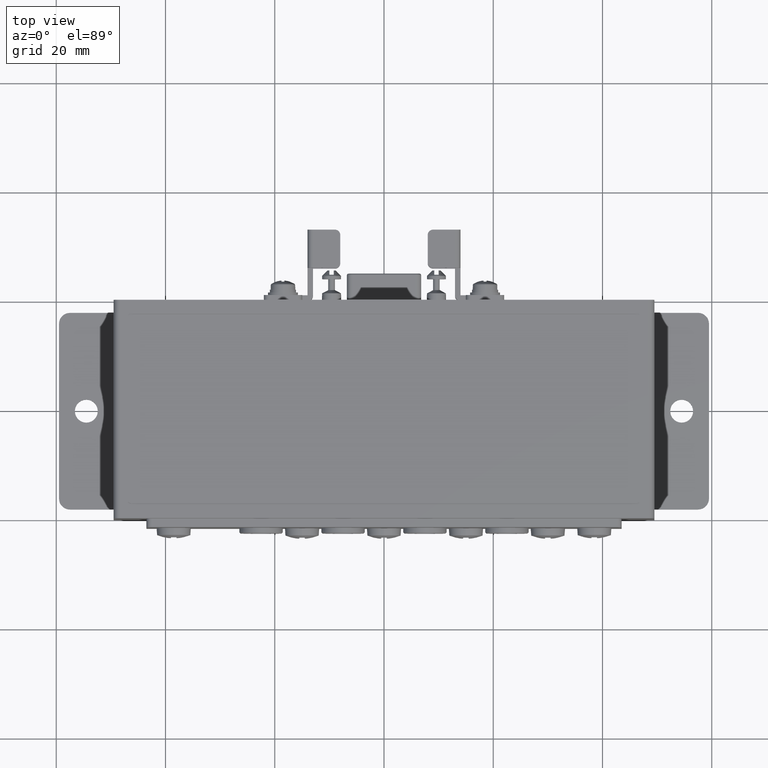
[diagram: clean part render]
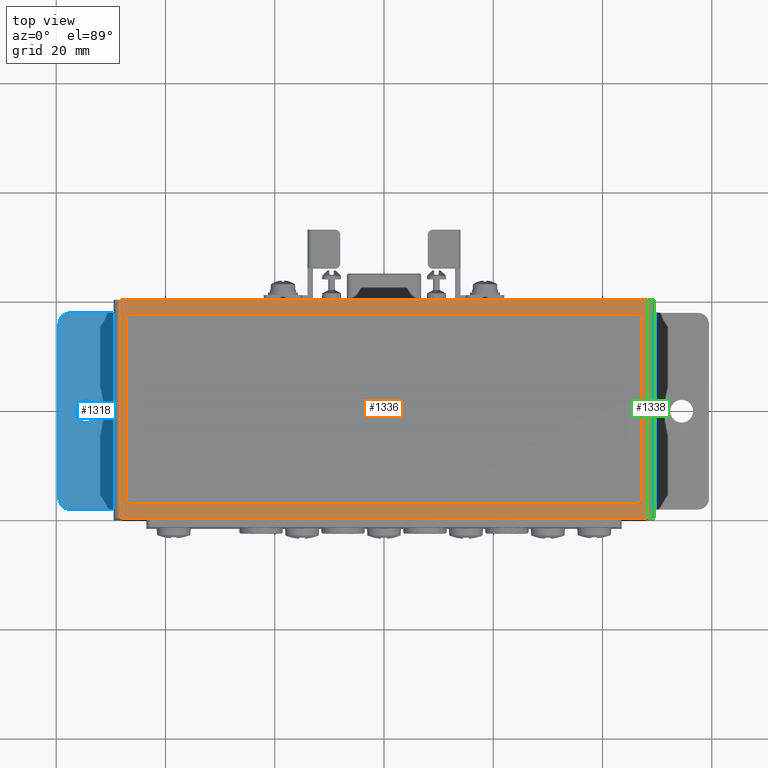
[diagram: same view with three faces highlighted in distinct colors, each labeled with its STEP entity id]
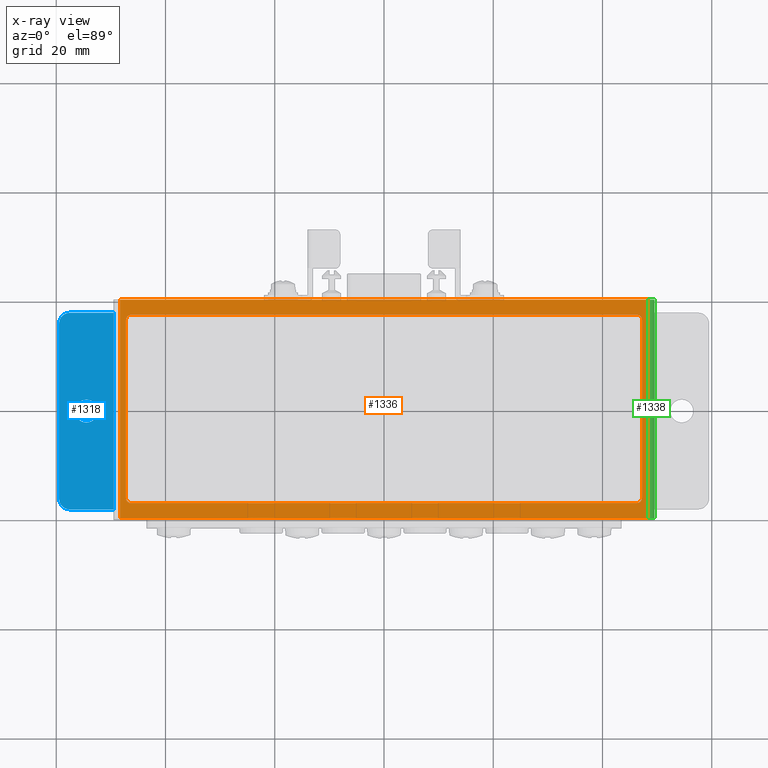
[diagram: x-ray of the same camera — body ghosted, the three highlighted faces saturated]
A machine part, top view with three faces highlighted in distinct colors.
The next image is the same camera in x-ray (body ghosted, the three faces saturated) — at least one of them is partly hidden behind the body in this view.
Their STEP definitions:

[orange] entity #1336 — the highlighted planar face has unit normal (0, 0, 1).
#1336 = ADVANCED_FACE( '', ( #2857, #2858 ), #2859, .T. );
#2857 = FACE_BOUND( '', #4492, .T. );
#2858 = FACE_OUTER_BOUND( '', #4493, .T. );
#2859 = PLANE( '', #4494 );
#4492 = EDGE_LOOP( '', ( #8372, #8373, #8374, #8375, #8376, #8377, #8378, #8379, #8380, #8381, #8382, #8383, #8384, #8385, #8386, #8387, #8388, #8389, #8390, #8391, #8392, #8393, #8394, #8395, #8396, #8397, #8398, #8399, #8400, #8401, #8402, #8403, #8404, #8405, #8406, #8407, #8408, #8409, #8410, #8411, #8412, #8413, #8414, #8415, #8416, #8417, #8418, #8419 ) );
#4493 = EDGE_LOOP( '', ( #8420, #8421, #8422, #8423 ) );
#4494 = AXIS2_PLACEMENT_3D( '', #8424, #8425, #8426 );
#8372 = ORIENTED_EDGE( '', *, *, #9865, .F. );
#8373 = ORIENTED_EDGE( '', *, *, #10210, .F. );
#8374 = ORIENTED_EDGE( '', *, *, #10159, .F. );
#8375 = ORIENTED_EDGE( '', *, *, #9817, .F. );
#8376 = ORIENTED_EDGE( '', *, *, #10795, .F. );
#8377 = ORIENTED_EDGE( '', *, *, #9514, .F. );
#8378 = ORIENTED_EDGE( '', *, *, #9827, .F. );
#8379 = ORIENTED_EDGE( '', *, *, #10796, .F. );
#8380 = ORIENTED_EDGE( '', *, *, #10726, .F. );
#8381 = ORIENTED_EDGE( '', *, *, #9695, .F. );
#8382 = ORIENTED_EDGE( '', *, *, #10335, .F. );
#8383 = ORIENTED_EDGE( '', *, *, #10189, .F. );
#8384 = ORIENTED_EDGE( '', *, *, #10650, .F. );
#8385 = ORIENTED_EDGE( '', *, *, #10797, .F. );
#8386 = ORIENTED_EDGE( '', *, *, #9540, .F. );
#8387 = ORIENTED_EDGE( '', *, *, #10204, .F. );
#8388 = ORIENTED_EDGE( '', *, *, #10400, .F. );
#8389 = ORIENTED_EDGE( '', *, *, #9691, .F. );
#8390 = ORIENTED_EDGE( '', *, *, #9435, .F. );
#8391 = ORIENTED_EDGE( '', *, *, #10798, .F. );
#8392 = ORIENTED_EDGE( '', *, *, #10610, .F. );
#8393 = ORIENTED_EDGE( '', *, *, #10485, .F. );
#8394 = ORIENTED_EDGE( '', *, *, #9849, .F. );
#8395 = ORIENTED_EDGE( '', *, *, #9626, .F. );
#8396 = ORIENTED_EDGE( '', *, *, #10381, .F. );
#8397 = ORIENTED_EDGE( '', *, *, #9276, .F. );
#8398 = ORIENTED_EDGE( '', *, *, #10038, .F. );
#8399 = ORIENTED_EDGE( '', *, *, #10226, .F. );
#8400 = ORIENTED_EDGE( '', *, *, #9524, .F. );
#8401 = ORIENTED_EDGE( '', *, *, #10799, .F. );
#8402 = ORIENTED_EDGE( '', *, *, #9911, .F. );
#8403 = ORIENTED_EDGE( '', *, *, #10000, .F. );
#8404 = ORIENTED_EDGE( '', *, *, #10800, .F. );
#8405 = ORIENTED_EDGE( '', *, *, #9926, .F. );
#8406 = ORIENTED_EDGE( '', *, *, #10256, .F. );
#8407 = ORIENTED_EDGE( '', *, *, #10362, .F. );
#8408 = ORIENTED_EDGE( '', *, *, #10393, .F. );
#8409 = ORIENTED_EDGE( '', *, *, #10332, .F. );
#8410 = ORIENTED_EDGE( '', *, *, #9720, .F. );
#8411 = ORIENTED_EDGE( '', *, *, #9931, .F. );
#8412 = ORIENTED_EDGE( '', *, *, #9641, .F. );
#8413 = ORIENTED_EDGE( '', *, *, #10526, .F. );
#8414 = ORIENTED_EDGE( '', *, *, #9293, .F. );
#8415 = ORIENTED_EDGE( '', *, *, #10417, .F. );
#8416 = ORIENTED_EDGE( '', *, *, #10801, .F. );
#8417 = ORIENTED_EDGE( '', *, *, #10741, .F. );
#8418 = ORIENTED_EDGE( '', *, *, #9474, .F. );
#8419 = ORIENTED_EDGE( '', *, *, #9616, .F. );
#8420 = ORIENTED_EDGE( '', *, *, #9344, .T. );
#8421 = ORIENTED_EDGE( '', *, *, #10802, .T. );
#8422 = ORIENTED_EDGE( '', *, *, #10433, .T. );
#8423 = ORIENTED_EDGE( '', *, *, #9918, .T. );
#8424 = CARTESIAN_POINT( '', ( -49.4999070000000, 19.9999855000000, 0.000000000000000 ) );
#8425 = DIRECTION( '', ( 0.000000000000000, 0.000000000000000, 1.00000000000000 ) );
#8426 = DIRECTION( '', ( -1.00000000000000, -0.000000000000000, 0.000000000000000 ) );
#9276 = EDGE_CURVE( '', #11032, #11033, #11034, .T. );
#9293 = EDGE_CURVE( '', #11062, #11063, #11064, .T. );
#9344 = EDGE_CURVE( '', #11155, #11153, #11156, .T. );
#9435 = EDGE_CURVE( '', #11312, #11313, #11314, .T. );
#9474 = EDGE_CURVE( '', #11379, #11380, #11381, .T. );
#9514 = EDGE_CURVE( '', #11448, #11449, #11450, .T. );
#9524 = EDGE_CURVE( '', #11466, #11467, #11468, .T. );
#9540 = EDGE_CURVE( '', #11495, #11496, #11497, .T. );
#9616 = EDGE_CURVE( '', #11629, #11379, #11630, .T. );
#9626 = EDGE_CURVE( '', #11646, #11647, #11648, .T. );
#9641 = EDGE_CURVE( '', #11673, #11674, #11675, .T. );
#9691 = EDGE_CURVE( '', #11313, #11756, #11757, .T. );
#9695 = EDGE_CURVE( '', #11762, #11763, #11764, .T. );
#9720 = EDGE_CURVE( '', #11804, #11805, #11806, .T. );
#9817 = EDGE_CURVE( '', #11965, #11966, #11967, .T. );
#9827 = EDGE_CURVE( '', #11981, #11448, #11982, .T. );
#9849 = EDGE_CURVE( '', #11647, #12012, #12013, .T. );
#9865 = EDGE_CURVE( '', #12038, #11629, #12039, .T. );
#9911 = EDGE_CURVE( '', #12115, #12116, #12117, .T. );
#9918 = EDGE_CURVE( '', #12125, #11155, #12128, .T. );
#9926 = EDGE_CURVE( '', #12139, #12140, #12141, .T. );
#9931 = EDGE_CURVE( '', #11674, #11804, #12148, .T. );
#10000 = EDGE_CURVE( '', #12258, #12115, #12259, .T. );
#10038 = EDGE_CURVE( '', #12313, #11032, #12314, .T. );
#10159 = EDGE_CURVE( '', #11966, #12499, #12500, .T. );
#10189 = EDGE_CURVE( '', #12543, #12544, #12545, .T. );
#10204 = EDGE_CURVE( '', #12566, #11495, #12567, .T. );
#10210 = EDGE_CURVE( '', #12499, #12038, #12575, .T. );
#10226 = EDGE_CURVE( '', #11467, #12313, #12599, .T. );
#10256 = EDGE_CURVE( '', #12642, #12139, #12643, .T. );
#10332 = EDGE_CURVE( '', #11805, #12748, #12749, .T. );
#10335 = EDGE_CURVE( '', #12544, #11762, #12752, .T. );
#10362 = EDGE_CURVE( '', #12791, #12642, #12792, .T. );
#10381 = EDGE_CURVE( '', #11033, #11646, #12817, .T. );
#10393 = EDGE_CURVE( '', #12748, #12791, #12831, .T. );
#10400 = EDGE_CURVE( '', #11756, #12566, #12842, .T. );
#10417 = EDGE_CURVE( '', #12863, #11062, #12864, .T. );
#10433 = EDGE_CURVE( '', #12882, #12125, #12883, .T. );
#10485 = EDGE_CURVE( '', #12012, #12952, #12953, .T. );
#10526 = EDGE_CURVE( '', #11063, #11673, #13002, .T. );
#10610 = EDGE_CURVE( '', #12952, #13107, #13108, .T. );
#10650 = EDGE_CURVE( '', #13158, #12543, #13159, .T. );
#10726 = EDGE_CURVE( '', #11763, #13249, #13250, .T. );
#10741 = EDGE_CURVE( '', #11380, #13266, #13267, .T. );
#10795 = EDGE_CURVE( '', #11449, #11965, #13330, .T. );
#10796 = EDGE_CURVE( '', #13249, #11981, #13331, .T. );
#10797 = EDGE_CURVE( '', #11496, #13158, #13332, .T. );
#10798 = EDGE_CURVE( '', #13107, #11312, #13333, .T. );
#10799 = EDGE_CURVE( '', #12116, #11466, #13334, .T. );
#10800 = EDGE_CURVE( '', #12140, #12258, #13335, .T. );
#10801 = EDGE_CURVE( '', #13266, #12863, #13336, .T. );
#10802 = EDGE_CURVE( '', #11153, #12882, #13337, .T. );
#11032 = VERTEX_POINT( '', #13646 );
#11033 = VERTEX_POINT( '', #13647 );
#11034 = LINE( '', #13648, #13649 );
#11062 = VERTEX_POINT( '', #13682 );
#11063 = VERTEX_POINT( '', #13683 );
#11064 = LINE( '', #13684, #13685 );
#11153 = VERTEX_POINT( '', #13810 );
#11155 = VERTEX_POINT( '', #13812 );
#11156 = LINE( '', #13813, #13814 );
#11312 = VERTEX_POINT( '', #14051 );
#11313 = VERTEX_POINT( '', #14052 );
#11314 = LINE( '', #14053, #14054 );
#11379 = VERTEX_POINT( '', #14145 );
#11380 = VERTEX_POINT( '', #14146 );
#11381 = LINE( '', #14147, #14148 );
#11448 = VERTEX_POINT( '', #14252 );
#11449 = VERTEX_POINT( '', #14253 );
#11450 = LINE( '', #14254, #14255 );
#11466 = VERTEX_POINT( '', #14277 );
#11467 = VERTEX_POINT( '', #14278 );
#11468 = LINE( '', #14279, #14280 );
#11495 = VERTEX_POINT( '', #14328 );
#11496 = VERTEX_POINT( '', #14329 );
#11497 = LINE( '', #14330, #14331 );
#11629 = VERTEX_POINT( '', #14563 );
#11630 = LINE( '', #14564, #14565 );
#11646 = VERTEX_POINT( '', #14585 );
#11647 = VERTEX_POINT( '', #14586 );
#11648 = LINE( '', #14587, #14588 );
#11673 = VERTEX_POINT( '', #14625 );
#11674 = VERTEX_POINT( '', #14626 );
#11675 = LINE( '', #14627, #14628 );
#11756 = VERTEX_POINT( '', #14761 );
#11757 = LINE( '', #14762, #14763 );
#11762 = VERTEX_POINT( '', #14770 );
#11763 = VERTEX_POINT( '', #14771 );
#11764 = LINE( '', #14772, #14773 );
#11804 = VERTEX_POINT( '', #14829 );
#11805 = VERTEX_POINT( '', #14830 );
#11806 = LINE( '', #14831, #14832 );
#11965 = VERTEX_POINT( '', #15060 );
#11966 = VERTEX_POINT( '', #15061 );
#11967 = LINE( '', #15062, #15063 );
#11981 = VERTEX_POINT( '', #15088 );
#11982 = LINE( '', #15089, #15090 );
#12012 = VERTEX_POINT( '', #15134 );
#12013 = LINE( '', #15135, #15136 );
#12038 = VERTEX_POINT( '', #15171 );
#12039 = LINE( '', #15172, #15173 );
#12115 = VERTEX_POINT( '', #15322 );
#12116 = VERTEX_POINT( '', #15323 );
#12117 = LINE( '', #15324, #15325 );
#12125 = VERTEX_POINT( '', #15336 );
#12128 = LINE( '', #15340, #15341 );
#12139 = VERTEX_POINT( '', #15355 );
#12140 = VERTEX_POINT( '', #15356 );
#12141 = LINE( '', #15357, #15358 );
#12148 = LINE( '', #15368, #15369 );
#12258 = VERTEX_POINT( '', #15571 );
#12259 = LINE( '', #15572, #15573 );
#12313 = VERTEX_POINT( '', #15670 );
#12314 = LINE( '', #15671, #15672 );
#12499 = VERTEX_POINT( '', #15954 );
#12500 = LINE( '', #15955, #15956 );
#12543 = VERTEX_POINT( '', #16032 );
#12544 = VERTEX_POINT( '', #16033 );
#12545 = LINE( '', #16034, #16035 );
#12566 = VERTEX_POINT( '', #16069 );
#12567 = LINE( '', #16070, #16071 );
#12575 = LINE( '', #16081, #16082 );
#12599 = LINE( '', #16113, #16114 );
#12642 = VERTEX_POINT( '', #16187 );
#12643 = LINE( '', #16188, #16189 );
#12748 = VERTEX_POINT( '', #16356 );
#12749 = LINE( '', #16357, #16358 );
#12752 = LINE( '', #16362, #16363 );
#12791 = VERTEX_POINT( '', #16429 );
#12792 = LINE( '', #16430, #16431 );
#12817 = LINE( '', #16472, #16473 );
#12831 = LINE( '', #16499, #16500 );
#12842 = LINE( '', #16514, #16515 );
#12863 = VERTEX_POINT( '', #16548 );
#12864 = LINE( '', #16549, #16550 );
#12882 = VERTEX_POINT( '', #16578 );
#12883 = LINE( '', #16579, #16580 );
#12952 = VERTEX_POINT( '', #16697 );
#12953 = LINE( '', #16698, #16699 );
#13002 = LINE( '', #16786, #16787 );
#13107 = VERTEX_POINT( '', #16985 );
#13108 = LINE( '', #16986, #16987 );
#13158 = VERTEX_POINT( '', #17063 );
#13159 = LINE( '', #17064, #17065 );
#13249 = VERTEX_POINT( '', #17209 );
#13250 = LINE( '', #17210, #17211 );
#13266 = VERTEX_POINT( '', #17238 );
#13267 = LINE( '', #17239, #17240 );
#13330 = LINE( '', #17320, #17321 );
#13331 = LINE( '', #17322, #17323 );
#13332 = LINE( '', #17324, #17325 );
#13333 = LINE( '', #17326, #17327 );
#13334 = LINE( '', #17328, #17329 );
#13335 = LINE( '', #17330, #17331 );
#13336 = LINE( '', #17332, #17333 );
#13337 = LINE( '', #17334, #17335 );
#13646 = CARTESIAN_POINT( '', ( 47.2041117932970, -16.5511194962540, 0.000000000000000 ) );
#13647 = CARTESIAN_POINT( '', ( 47.2396267280030, -16.3963188193600, 0.000000000000000 ) );
#13648 = CARTESIAN_POINT( '', ( 47.2041117932970, -16.5511194962540, 0.000000000000000 ) );
#13649 = VECTOR( '', #17577, 1000.00000000000 );
#13682 = CARTESIAN_POINT( '', ( -47.1310636033350, -16.7232629236950, 0.000000000000000 ) );
#13683 = CARTESIAN_POINT( '', ( -47.0477825247900, -16.8529498880240, 0.000000000000000 ) );
#13684 = CARTESIAN_POINT( '', ( -47.1310636033350, -16.7232629236950, 0.000000000000000 ) );
#13685 = VECTOR( '', #17604, 1000.00000000000 );
#13810 = CARTESIAN_POINT( '', ( 48.2999070000000, -19.9999855000000, 0.000000000000000 ) );
#13812 = CARTESIAN_POINT( '', ( -48.2999070000000, -19.9999855000000, 0.000000000000000 ) );
#13813 = CARTESIAN_POINT( '', ( -49.4999070000000, -19.9999855000000, 0.000000000000000 ) );
#13814 = VECTOR( '', #17676, 1000.00000000000 );
#14051 = CARTESIAN_POINT( '', ( 47.1313731510120, 16.7232629610220, 0.000000000000000 ) );
#14052 = CARTESIAN_POINT( '', ( 47.0480750864230, 16.8529499253500, 0.000000000000000 ) );
#14053 = CARTESIAN_POINT( '', ( 47.1313731510120, 16.7232629610220, 0.000000000000000 ) );
#14054 = VECTOR( '', #17792, 1000.00000000000 );
#14145 = CARTESIAN_POINT( '', ( -47.2499155768230, -16.2499986249999, 0.000000000000000 ) );
#14146 = CARTESIAN_POINT( '', ( -47.2493810923070, -16.2830055419050, 0.000000000000000 ) );
#14147 = CARTESIAN_POINT( '', ( -47.2499155768230, -16.2499986249999, 0.000000000000000 ) );
#14148 = VECTOR( '', #17839, 1000.00000000000 );
#14252 = CARTESIAN_POINT( '', ( -46.8528293733490, 17.0479255777420, 0.000000000000000 ) );
#14253 = CARTESIAN_POINT( '', ( -46.9677931691800, 16.9462052784530, 0.000000000000000 ) );
#14254 = CARTESIAN_POINT( '', ( -46.8528293733490, 17.0479255777420, 0.000000000000000 ) );
#14255 = VECTOR( '', #17876, 1000.00000000000 );
#14277 = CARTESIAN_POINT( '', ( 46.9680737046740, -16.9462052411270, 0.000000000000000 ) );
#14278 = CARTESIAN_POINT( '', ( 47.0662744255130, -16.8281235632570, 0.000000000000000 ) );
#14279 = CARTESIAN_POINT( '', ( 46.9680737046740, -16.9462052411270, 0.000000000000000 ) );
#14280 = VECTOR( '', #17886, 1000.00000000000 );
#14328 = CARTESIAN_POINT( '', ( 46.6958909089330, 17.1454912317460, 0.000000000000000 ) );
#14329 = CARTESIAN_POINT( '', ( 46.5512690422610, 17.2039622846160, 0.000000000000000 ) );
#14330 = CARTESIAN_POINT( '', ( 46.6958909089330, 17.1454912317460, 0.000000000000000 ) );
#14331 = VECTOR( '', #17901, 1000.00000000000 );
#14563 = CARTESIAN_POINT( '', ( -47.2499155768230, 16.2499986623260, 0.000000000000000 ) );
#14564 = CARTESIAN_POINT( '', ( -47.2499155768230, 16.2499986623260, 0.000000000000000 ) );
#14565 = VECTOR( '', #17983, 1000.00000000000 );
#14585 = CARTESIAN_POINT( '', ( 47.2502593906250, -16.2499986250000, 0.000000000000000 ) );
#14586 = CARTESIAN_POINT( '', ( 47.2502593906250, 16.2499986623260, 0.000000000000000 ) );
#14587 = CARTESIAN_POINT( '', ( 47.2502593906250, -16.2499986250000, 0.000000000000000 ) );
#14588 = VECTOR( '', #17997, 1000.00000000000 );
#14625 = CARTESIAN_POINT( '', ( -46.9460768344280, -16.9679241586670, 0.000000000000000 ) );
#14626 = CARTESIAN_POINT( '', ( -46.8280042877830, -17.0661248795060, 0.000000000000000 ) );
#14627 = CARTESIAN_POINT( '', ( -46.9460768344280, -16.9679241586670, 0.000000000000000 ) );
#14628 = VECTOR( '', #18010, 1000.00000000000 );
#14761 = CARTESIAN_POINT( '', ( 46.9463547871340, 16.9679241959930, 0.000000000000000 ) );
#14762 = CARTESIAN_POINT( '', ( 47.0480750864230, 16.8529499253500, 0.000000000000000 ) );
#14763 = VECTOR( '', #18062, 1000.00000000000 );
#14770 = CARTESIAN_POINT( '', ( -46.2828212001190, 17.2495751948570, 0.000000000000000 ) );
#14771 = CARTESIAN_POINT( '', ( -46.4278450968600, 17.2343096429280, 0.000000000000000 ) );
#14772 = CARTESIAN_POINT( '', ( -46.2828212001190, 17.2495751948570, 0.000000000000000 ) );
#14773 = VECTOR( '', #18065, 1000.00000000000 );
#14829 = CARTESIAN_POINT( '', ( -46.6956226403900, -17.1454911944200, 0.000000000000000 ) );
#14830 = CARTESIAN_POINT( '', ( -46.5509896477820, -17.2039622472900, 0.000000000000000 ) );
#14831 = CARTESIAN_POINT( '', ( -46.6956226403900, -17.1454911944200, 0.000000000000000 ) );
#14832 = VECTOR( '', #18097, 1000.00000000000 );
#15060 = CARTESIAN_POINT( '', ( -47.0659785576210, 16.8281236005830, 0.000000000000000 ) );
#15061 = CARTESIAN_POINT( '', ( -47.1453277831390, 16.6957414002520, 0.000000000000000 ) );
#15062 = CARTESIAN_POINT( '', ( -47.0659785576210, 16.8281236005830, 0.000000000000000 ) );
#15063 = VECTOR( '', #18230, 1000.00000000000 );
#15088 = CARTESIAN_POINT( '', ( -46.7231449256630, 17.1312236423310, 0.000000000000000 ) );
#15089 = CARTESIAN_POINT( '', ( -46.7231449256630, 17.1312236423310, 0.000000000000000 ) );
#15090 = VECTOR( '', #18238, 1000.00000000000 );
#15134 = CARTESIAN_POINT( '', ( 47.2497247035370, 16.2830055792320, 0.000000000000000 ) );
#15135 = CARTESIAN_POINT( '', ( 47.2502593906250, 16.2499986623260, 0.000000000000000 ) );
#15136 = VECTOR( '', #18259, 1000.00000000000 );
#15171 = CARTESIAN_POINT( '', ( -47.2392867232710, 16.3963188566870, 0.000000000000000 ) );
#15172 = CARTESIAN_POINT( '', ( -47.2392867232710, 16.3963188566870, 0.000000000000000 ) );
#15173 = VECTOR( '', #18276, 1000.00000000000 );
#15322 = CARTESIAN_POINT( '', ( 46.7234124697020, -17.1312236050050, 0.000000000000000 ) );
#15323 = CARTESIAN_POINT( '', ( 46.8530994340300, -17.0479255404160, 0.000000000000000 ) );
#15324 = CARTESIAN_POINT( '', ( 46.7234124697020, -17.1312236050050, 0.000000000000000 ) );
#15325 = VECTOR( '', #18311, 1000.00000000000 );
#15336 = CARTESIAN_POINT( '', ( -48.2999070000000, 19.9999855000000, 0.000000000000000 ) );
#15340 = CARTESIAN_POINT( '', ( -48.2999070000000, 19.9999855000000, 0.000000000000000 ) );
#15341 = VECTOR( '', #18319, 1000.00000000000 );
#15355 = CARTESIAN_POINT( '', ( 46.2831550879120, -17.2495751575300, 0.000000000000000 ) );
#15356 = CARTESIAN_POINT( '', ( 46.4281438844700, -17.2343096056020, 0.000000000000000 ) );
#15357 = CARTESIAN_POINT( '', ( 46.2831550879120, -17.2495751575300, 0.000000000000000 ) );
#15358 = VECTOR( '', #18326, 1000.00000000000 );
#15368 = CARTESIAN_POINT( '', ( -46.8280042877830, -17.0661248795060, 0.000000000000000 ) );
#15369 = VECTOR( '', #18330, 1000.00000000000 );
#15571 = CARTESIAN_POINT( '', ( 46.5810736678090, -17.1940385787730, 0.000000000000000 ) );
#15572 = CARTESIAN_POINT( '', ( 46.5810736678090, -17.1940385787730, 0.000000000000000 ) );
#15573 = VECTOR( '', #18398, 1000.00000000000 );
#15670 = CARTESIAN_POINT( '', ( 47.1456407404270, -16.6957413629260, 0.000000000000000 ) );
#15671 = CARTESIAN_POINT( '', ( 47.1456407404270, -16.6957413629260, 0.000000000000000 ) );
#15672 = VECTOR( '', #18429, 1000.00000000000 );
#15954 = CARTESIAN_POINT( '', ( -47.2037830902000, 16.5511195335800, 0.000000000000000 ) );
#15955 = CARTESIAN_POINT( '', ( -47.1453277831390, 16.6957414002520, 0.000000000000000 ) );
#15956 = VECTOR( '', #18565, 1000.00000000000 );
#16032 = CARTESIAN_POINT( '', ( 46.2501481710070, 17.2501098819440, 0.000000000000000 ) );
#16033 = CARTESIAN_POINT( '', ( -46.2498043572050, 17.2501098819440, 0.000000000000000 ) );
#16034 = CARTESIAN_POINT( '', ( 46.2501481710070, 17.2501098819440, 0.000000000000000 ) );
#16035 = VECTOR( '', #18586, 1000.00000000000 );
#16069 = CARTESIAN_POINT( '', ( 46.8282731092640, 17.0661249168320, 0.000000000000000 ) );
#16070 = CARTESIAN_POINT( '', ( 46.8282731092640, 17.0661249168320, 0.000000000000000 ) );
#16071 = VECTOR( '', #18597, 1000.00000000000 );
#16081 = CARTESIAN_POINT( '', ( -47.2037830902000, 16.5511195335800, 0.000000000000000 ) );
#16082 = VECTOR( '', #18603, 1000.00000000000 );
#16113 = CARTESIAN_POINT( '', ( 47.0662744255130, -16.8281235632570, 0.000000000000000 ) );
#16114 = VECTOR( '', #18623, 1000.00000000000 );
#16187 = CARTESIAN_POINT( '', ( 46.2501481710070, -17.2501098446180, 0.000000000000000 ) );
#16188 = CARTESIAN_POINT( '', ( 46.2501481710070, -17.2501098446180, 0.000000000000000 ) );
#16189 = VECTOR( '', #18647, 1000.00000000000 );
#16356 = CARTESIAN_POINT( '', ( -46.3961630654930, -17.2394771819960, 0.000000000000000 ) );
#16357 = CARTESIAN_POINT( '', ( -46.5509896477820, -17.2039622472900, 0.000000000000000 ) );
#16358 = VECTOR( '', #18718, 1000.00000000000 );
#16362 = CARTESIAN_POINT( '', ( -46.2498043572050, 17.2501098819440, 0.000000000000000 ) );
#16363 = VECTOR( '', #18720, 1000.00000000000 );
#16429 = CARTESIAN_POINT( '', ( -46.2498043572050, -17.2501098446180, 0.000000000000000 ) );
#16430 = CARTESIAN_POINT( '', ( -46.2498043572050, -17.2501098446180, 0.000000000000000 ) );
#16431 = VECTOR( '', #18746, 1000.00000000000 );
#16472 = CARTESIAN_POINT( '', ( 47.2396267280030, -16.3963188193600, 0.000000000000000 ) );
#16473 = VECTOR( '', #18761, 1000.00000000000 );
#16499 = CARTESIAN_POINT( '', ( -46.3961630654930, -17.2394771819960, 0.000000000000000 ) );
#16500 = VECTOR( '', #18773, 1000.00000000000 );
#16514 = CARTESIAN_POINT( '', ( 46.9463547871340, 16.9679241959930, 0.000000000000000 ) );
#16515 = VECTOR( '', #18780, 1000.00000000000 );
#16548 = CARTESIAN_POINT( '', ( -47.1938623145300, -16.5809241218020, 0.000000000000000 ) );
#16549 = CARTESIAN_POINT( '', ( -47.1938623145300, -16.5809241218020, 0.000000000000000 ) );
#16550 = VECTOR( '', #18790, 1000.00000000000 );
#16578 = CARTESIAN_POINT( '', ( 48.2999070000000, 19.9999855000000, 0.000000000000000 ) );
#16579 = CARTESIAN_POINT( '', ( 49.4999070000000, 19.9999855000000, 0.000000000000000 ) );
#16580 = VECTOR( '', #18810, 1000.00000000000 );
#16697 = CARTESIAN_POINT( '', ( 47.2344591516090, 16.4279943757890, 0.000000000000000 ) );
#16698 = CARTESIAN_POINT( '', ( 47.2497247035370, 16.2830055792320, 0.000000000000000 ) );
#16699 = VECTOR( '', #18866, 1000.00000000000 );
#16786 = CARTESIAN_POINT( '', ( -47.0477825247900, -16.8529498880240, 0.000000000000000 ) );
#16787 = VECTOR( '', #18902, 1000.00000000000 );
#16985 = CARTESIAN_POINT( '', ( 47.1941881247800, 16.5809241591280, 0.000000000000000 ) );
#16986 = CARTESIAN_POINT( '', ( 47.2344591516090, 16.4279943757890, 0.000000000000000 ) );
#16987 = VECTOR( '', #18974, 1000.00000000000 );
#17063 = CARTESIAN_POINT( '', ( 46.3964683653670, 17.2394772193220, 0.000000000000000 ) );
#17064 = CARTESIAN_POINT( '', ( 46.3964683653670, 17.2394772193220, 0.000000000000000 ) );
#17065 = VECTOR( '', #19020, 1000.00000000000 );
#17209 = CARTESIAN_POINT( '', ( -46.5807975816560, 17.1940386161000, 0.000000000000000 ) );
#17210 = CARTESIAN_POINT( '', ( -46.4278450968600, 17.2343096429280, 0.000000000000000 ) );
#17211 = VECTOR( '', #19106, 1000.00000000000 );
#17238 = CARTESIAN_POINT( '', ( -47.2341209028420, -16.4279943384630, 0.000000000000000 ) );
#17239 = CARTESIAN_POINT( '', ( -47.2493810923070, -16.2830055419050, 0.000000000000000 ) );
#17240 = VECTOR( '', #19116, 1000.00000000000 );
#17320 = CARTESIAN_POINT( '', ( -46.9677931691800, 16.9462052784530, 0.000000000000000 ) );
#17321 = VECTOR( '', #19167, 1000.00000000000 );
#17322 = CARTESIAN_POINT( '', ( -46.5807975816560, 17.1940386161000, 0.000000000000000 ) );
#17323 = VECTOR( '', #19168, 1000.00000000000 );
#17324 = CARTESIAN_POINT( '', ( 46.5512690422610, 17.2039622846160, 0.000000000000000 ) );
#17325 = VECTOR( '', #19169, 1000.00000000000 );
#17326 = CARTESIAN_POINT( '', ( 47.1941881247800, 16.5809241591280, 0.000000000000000 ) );
#17327 = VECTOR( '', #19170, 1000.00000000000 );
#17328 = CARTESIAN_POINT( '', ( 46.8530994340300, -17.0479255404160, 0.000000000000000 ) );
#17329 = VECTOR( '', #19171, 1000.00000000000 );
#17330 = CARTESIAN_POINT( '', ( 46.4281438844700, -17.2343096056020, 0.000000000000000 ) );
#17331 = VECTOR( '', #19172, 1000.00000000000 );
#17332 = CARTESIAN_POINT( '', ( -47.2341209028420, -16.4279943384630, 0.000000000000000 ) );
#17333 = VECTOR( '', #19173, 1000.00000000000 );
#17334 = CARTESIAN_POINT( '', ( 48.2999070000000, 19.9999855000000, 0.000000000000000 ) );
#17335 = VECTOR( '', #19174, 1000.00000000000 );
#17577 = DIRECTION( '', ( 0.223614118007969, 0.974677755069601, 0.000000000000000 ) );
#17604 = DIRECTION( '', ( 0.540348413699827, -0.841441377525541, 0.000000000000000 ) );
#17676 = DIRECTION( '', ( 1.00000000000000, 0.000000000000000, 0.000000000000000 ) );
#17792 = DIRECTION( '', ( -0.540426437793910, 0.841391267683107, 0.000000000000000 ) );
#17839 = DIRECTION( '', ( 0.0161909837242024, -0.999868917431701, 0.000000000000000 ) );
#17876 = DIRECTION( '', ( -0.748926867264403, -0.662652659761906, 0.000000000000000 ) );
#17886 = DIRECTION( '', ( 0.639412928946992, 0.768863516038724, 0.000000000000000 ) );
#17901 = DIRECTION( '', ( -0.927094708861763, 0.374827161236380, 0.000000000000000 ) );
#17983 = DIRECTION( '', ( 0.000000000000000, -1.00000000000000, 0.000000000000000 ) );
#17997 = DIRECTION( '', ( 0.000000000000000, 1.00000000000000, 0.000000000000000 ) );
#18010 = DIRECTION( '', ( 0.768839205846824, -0.639442159661705, 0.000000000000000 ) );
#18062 = DIRECTION( '', ( -0.662618795906301, 0.748956828736933, 0.000000000000000 ) );
#18065 = DIRECTION( '', ( -0.994505539601381, -0.104683961055005, 0.000000000000000 ) );
#18097 = DIRECTION( '', ( 0.927104728354481, -0.374802378144488, 0.000000000000000 ) );
#18230 = DIRECTION( '', ( -0.514114127995439, -0.857721786709122, 0.000000000000000 ) );
#18238 = DIRECTION( '', ( -0.841386498925649, -0.540433862212240, 0.000000000000000 ) );
#18259 = DIRECTION( '', ( -0.0161971185690184, 0.999868818070681, 0.000000000000000 ) );
#18276 = DIRECTION( '', ( -0.0724501586005300, -0.997372034157143, 0.000000000000000 ) );
#18311 = DIRECTION( '', ( 0.841391267683092, 0.540426437793933, 0.000000000000000 ) );
#18319 = DIRECTION( '', ( 0.000000000000000, -1.00000000000000, 0.000000000000000 ) );
#18326 = DIRECTION( '', ( 0.994502900882307, 0.104709026051609, 0.000000000000000 ) );
#18330 = DIRECTION( '', ( 0.857672012633021, -0.514197159410691, 0.000000000000000 ) );
#18398 = DIRECTION( '', ( 0.914874017949304, 0.403739434885045, 0.000000000000000 ) );
#18429 = DIRECTION( '', ( 0.374827161236304, 0.927094708861794, 0.000000000000000 ) );
#18565 = DIRECTION( '', ( -0.374740399552946, -0.927129782146436, 0.000000000000000 ) );
#18586 = DIRECTION( '', ( -1.00000000000000, 0.000000000000000, 0.000000000000000 ) );
#18597 = DIRECTION( '', ( -0.857672959801613, 0.514195579546480, 0.000000000000000 ) );
#18603 = DIRECTION( '', ( -0.223546515634995, -0.974693262184290, 0.000000000000000 ) );
#18623 = DIRECTION( '', ( 0.514195579546334, 0.857672959801700, 0.000000000000000 ) );
#18647 = DIRECTION( '', ( 0.999868818070694, 0.0161971185682409, 0.000000000000000 ) );
#18718 = DIRECTION( '', ( 0.974685909118303, -0.223578573584829, 0.000000000000000 ) );
#18720 = DIRECTION( '', ( -0.999868896919488, -0.0161922503996882, 0.000000000000000 ) );
#18746 = DIRECTION( '', ( 1.00000000000000, 0.000000000000000, 0.000000000000000 ) );
#18761 = DIRECTION( '', ( 0.0724759862585962, 0.997370157672588, 0.000000000000000 ) );
#18773 = DIRECTION( '', ( 0.997371536111882, -0.0724570145246410, 0.000000000000000 ) );
#18780 = DIRECTION( '', ( -0.768863516038806, 0.639412928946894, 0.000000000000000 ) );
#18790 = DIRECTION( '', ( 0.403651941075722, -0.914912624497991, 0.000000000000000 ) );
#18810 = DIRECTION( '', ( -1.00000000000000, 0.000000000000000, 0.000000000000000 ) );
#18866 = DIRECTION( '', ( -0.104709026052209, 0.994502900882244, 0.000000000000000 ) );
#18902 = DIRECTION( '', ( 0.662565409696421, -0.749004057314654, 0.000000000000000 ) );
#18974 = DIRECTION( '', ( -0.254649107858302, 0.967033521583906, 0.000000000000000 ) );
#19020 = DIRECTION( '', ( -0.997370157672581, 0.0724759862587039, 0.000000000000000 ) );
#19106 = DIRECTION( '', ( -0.967042828314730, -0.254613762795823, 0.000000000000000 ) );
#19116 = DIRECTION( '', ( 0.104672647070064, -0.994506730472623, 0.000000000000000 ) );
#19167 = DIRECTION( '', ( -0.639353906540369, -0.768912597238184, 0.000000000000000 ) );
#19168 = DIRECTION( '', ( -0.914882966915219, -0.403719155909659, 0.000000000000000 ) );
#19169 = DIRECTION( '', ( -0.974677755069648, 0.223614118007765, 0.000000000000000 ) );
#19170 = DIRECTION( '', ( -0.403739434882823, 0.914874017950285, 0.000000000000000 ) );
#19171 = DIRECTION( '', ( 0.748956828739791, 0.662618795903071, 0.000000000000000 ) );
#19172 = DIRECTION( '', ( 0.967033521583906, 0.254649107858302, 0.000000000000000 ) );
#19173 = DIRECTION( '', ( 0.254575552525716, -0.967052887931279, 0.000000000000000 ) );
#19174 = DIRECTION( '', ( 0.000000000000000, 1.00000000000000, 0.000000000000000 ) );

[blue] entity #1318 — the highlighted planar face has unit normal (0, 0, -1).
#1318 = ADVANCED_FACE( '', ( #2825, #2826 ), #2827, .F. );
#2825 = FACE_BOUND( '', #4460, .T. );
#2826 = FACE_OUTER_BOUND( '', #4461, .T. );
#2827 = PLANE( '', #4462 );
#4460 = EDGE_LOOP( '', ( #8300 ) );
#4461 = EDGE_LOOP( '', ( #8301, #8302, #8303, #8304, #8305, #8306 ) );
#4462 = AXIS2_PLACEMENT_3D( '', #8307, #8308, #8309 );
#8300 = ORIENTED_EDGE( '', *, *, #10016, .T. );
#8301 = ORIENTED_EDGE( '', *, *, #10406, .F. );
#8302 = ORIENTED_EDGE( '', *, *, #10778, .T. );
#8303 = ORIENTED_EDGE( '', *, *, #9862, .T. );
#8304 = ORIENTED_EDGE( '', *, *, #10261, .T. );
#8305 = ORIENTED_EDGE( '', *, *, #9995, .T. );
#8306 = ORIENTED_EDGE( '', *, *, #10296, .T. );
#8307 = CARTESIAN_POINT( '', ( -58.9140614915365, -17.4143117082248, -23.0000000000000 ) );
#8308 = DIRECTION( '', ( 0.000000000000000, 0.000000000000000, -1.00000000000000 ) );
#8309 = DIRECTION( '', ( 0.000000000000000, 1.00000000000000, 0.000000000000000 ) );
#9862 = EDGE_CURVE( '', #12034, #12032, #12035, .T. );
#9995 = EDGE_CURVE( '', #12251, #12249, #12252, .T. );
#10016 = EDGE_CURVE( '', #12280, #12280, #12281, .T. );
#10261 = EDGE_CURVE( '', #12032, #12251, #12649, .T. );
#10296 = EDGE_CURVE( '', #12249, #12696, #12699, .T. );
#10406 = EDGE_CURVE( '', #12849, #12696, #12850, .T. );
#10778 = EDGE_CURVE( '', #12849, #12034, #13309, .T. );
#12032 = VERTEX_POINT( '', #15160 );
#12034 = VERTEX_POINT( '', #15163 );
#12035 = B_SPLINE_CURVE_WITH_KNOTS( '', 3, ( #15164, #15165, #15166, #15167 ), .UNSPECIFIED., .F., .F., ( 4, 4 ), ( 0.000000000000000, 1.00000000000000 ), .UNSPECIFIED. );
#12249 = VERTEX_POINT( '', #15557 );
#12251 = VERTEX_POINT( '', #15560 );
#12252 = B_SPLINE_CURVE_WITH_KNOTS( '', 3, ( #15561, #15562, #15563, #15564 ), .UNSPECIFIED., .F., .F., ( 4, 4 ), ( 0.000000000000000, 1.00000000000000 ), .UNSPECIFIED. );
#12280 = VERTEX_POINT( '', #15615 );
#12281 = CIRCLE( '', #15616, 2.10000000000000 );
#12649 = LINE( '', #16198, #16199 );
#12696 = VERTEX_POINT( '', #16272 );
#12699 = LINE( '', #16276, #16277 );
#12849 = VERTEX_POINT( '', #16525 );
#12850 = LINE( '', #16526, #16527 );
#13309 = LINE( '', #17296, #17297 );
#15160 = CARTESIAN_POINT( '', ( -59.4998138515625, 15.9998847300347, -23.0000000000000 ) );
#15163 = CARTESIAN_POINT( '', ( -57.4999359218750, 18.0001075000000, -23.0000000000000 ) );
#15164 = CARTESIAN_POINT( '', ( -57.4999359218750, 18.0001071692708, -23.0000000000000 ) );
#15165 = CARTESIAN_POINT( '', ( -58.6044335347222, 18.0001071692708, -23.0000000000000 ) );
#15166 = CARTESIAN_POINT( '', ( -59.4998138515625, 17.1047268524305, -23.0000000000000 ) );
#15167 = CARTESIAN_POINT( '', ( -59.4998138515625, 15.9998847300347, -23.0000000000000 ) );
#15557 = CARTESIAN_POINT( '', ( -57.4999295441874, -18.0001075000000, -23.0000000000000 ) );
#15560 = CARTESIAN_POINT( '', ( -59.4998140000000, -15.9998846927084, -23.0000000000000 ) );
#15561 = CARTESIAN_POINT( '', ( -59.4998138515625, -15.9998846927084, -23.0000000000000 ) );
#15562 = CARTESIAN_POINT( '', ( -59.4998138515625, -17.1047268151042, -23.0000000000000 ) );
#15563 = CARTESIAN_POINT( '', ( -58.6044335347222, -18.0001071319444, -23.0000000000000 ) );
#15564 = CARTESIAN_POINT( '', ( -57.4999359218750, -18.0001071319444, -23.0000000000000 ) );
#15615 = CARTESIAN_POINT( '', ( -54.5000000000000, 2.10017250000000, -23.0000000000000 ) );
#15616 = AXIS2_PLACEMENT_3D( '', #18412, #18413, #18414 );
#16198 = CARTESIAN_POINT( '', ( -59.4998140000000, 15.9998788030628, -23.0000000000000 ) );
#16199 = VECTOR( '', #18651, 1000.00000000000 );
#16272 = CARTESIAN_POINT( '', ( -49.4999070000000, -18.0001075000000, -23.0000000000000 ) );
#16276 = CARTESIAN_POINT( '', ( -57.4999295441874, -18.0001075000000, -23.0000000000000 ) );
#16277 = VECTOR( '', #18684, 1000.00000000000 );
#16525 = CARTESIAN_POINT( '', ( -49.4999070000000, 18.0001075000000, -23.0000000000000 ) );
#16526 = CARTESIAN_POINT( '', ( -49.4999070000000, 19.9999855000000, -23.0000000000000 ) );
#16527 = VECTOR( '', #18784, 1000.00000000000 );
#17296 = CARTESIAN_POINT( '', ( 57.5000975803946, 18.0001075000000, -23.0000000000000 ) );
#17297 = VECTOR( '', #19149, 1000.00000000000 );
#18412 = CARTESIAN_POINT( '', ( -54.5000000000000, 0.000172499999999409, -23.0000000000000 ) );
#18413 = DIRECTION( '', ( -0.000000000000000, 0.000000000000000, -1.00000000000000 ) );
#18414 = DIRECTION( '', ( 0.000000000000000, 1.00000000000000, 0.000000000000000 ) );
#18651 = DIRECTION( '', ( 0.000000000000000, -1.00000000000000, 0.000000000000000 ) );
#18684 = DIRECTION( '', ( 1.00000000000000, 0.000000000000000, 0.000000000000000 ) );
#18784 = DIRECTION( '', ( 0.000000000000000, -1.00000000000000, 0.000000000000000 ) );
#19149 = DIRECTION( '', ( -1.00000000000000, -0.000000000000000, 0.000000000000000 ) );

[green] entity #1338 — the highlighted cylindrical surface (edge-blend (fillet) strip) has radius 1.2 mm, axis along (-0, -1, -0).
#1338 = ADVANCED_FACE( '', ( #2861 ), #2862, .T. );
#2861 = FACE_OUTER_BOUND( '', #4496, .T. );
#2862 = CYLINDRICAL_SURFACE( '', #4497, 1.20000000000000 );
#4496 = EDGE_LOOP( '', ( #8428, #8429, #8430, #8431 ) );
#4497 = AXIS2_PLACEMENT_3D( '', #8432, #8433, #8434 );
#8428 = ORIENTED_EDGE( '', *, *, #9343, .F. );
#8429 = ORIENTED_EDGE( '', *, *, #10706, .F. );
#8430 = ORIENTED_EDGE( '', *, *, #10434, .F. );
#8431 = ORIENTED_EDGE( '', *, *, #10802, .F. );
#8432 = CARTESIAN_POINT( '', ( 48.2999070000000, 19.9999855000000, -1.20000000000000 ) );
#8433 = DIRECTION( '', ( -0.000000000000000, -1.00000000000000, -0.000000000000000 ) );
#8434 = DIRECTION( '', ( 0.000000000000000, -0.000000000000000, 1.00000000000000 ) );
#9343 = EDGE_CURVE( '', #11151, #11153, #11154, .T. );
#10434 = EDGE_CURVE( '', #12882, #12884, #12885, .T. );
#10706 = EDGE_CURVE( '', #12884, #11151, #13224, .F. );
#10802 = EDGE_CURVE( '', #11153, #12882, #13337, .T. );
#11151 = VERTEX_POINT( '', #13807 );
#11153 = VERTEX_POINT( '', #13810 );
#11154 = CIRCLE( '', #13811, 1.20000000000000 );
#12882 = VERTEX_POINT( '', #16578 );
#12884 = VERTEX_POINT( '', #16581 );
#12885 = CIRCLE( '', #16582, 1.20000000000000 );
#13224 = LINE( '', #17161, #17162 );
#13337 = LINE( '', #17334, #17335 );
#13807 = CARTESIAN_POINT( '', ( 49.4999070000000, -19.9999855000000, -1.20000000000000 ) );
#13810 = CARTESIAN_POINT( '', ( 48.2999070000000, -19.9999855000000, 0.000000000000000 ) );
#13811 = AXIS2_PLACEMENT_3D( '', #17673, #17674, #17675 );
#16578 = CARTESIAN_POINT( '', ( 48.2999070000000, 19.9999855000000, 0.000000000000000 ) );
#16581 = CARTESIAN_POINT( '', ( 49.4999070000000, 19.9999855000000, -1.20000000000000 ) );
#16582 = AXIS2_PLACEMENT_3D( '', #18811, #18812, #18813 );
#17161 = CARTESIAN_POINT( '', ( 49.4999070000000, -19.9999855000000, -1.20000000000000 ) );
#17162 = VECTOR( '', #19085, 1000.00000000000 );
#17334 = CARTESIAN_POINT( '', ( 48.2999070000000, 19.9999855000000, 0.000000000000000 ) );
#17335 = VECTOR( '', #19174, 1000.00000000000 );
#17673 = CARTESIAN_POINT( '', ( 48.2999070000000, -19.9999855000000, -1.20000000000000 ) );
#17674 = DIRECTION( '', ( 0.000000000000000, -1.00000000000000, 0.000000000000000 ) );
#17675 = DIRECTION( '', ( 0.000000000000000, 0.000000000000000, -1.00000000000000 ) );
#18811 = CARTESIAN_POINT( '', ( 48.2999070000000, 19.9999855000000, -1.20000000000000 ) );
#18812 = DIRECTION( '', ( 0.000000000000000, 1.00000000000000, 0.000000000000000 ) );
#18813 = DIRECTION( '', ( 0.000000000000000, -0.000000000000000, 1.00000000000000 ) );
#19085 = DIRECTION( '', ( -0.000000000000000, 1.00000000000000, 0.000000000000000 ) );
#19174 = DIRECTION( '', ( 0.000000000000000, 1.00000000000000, 0.000000000000000 ) );